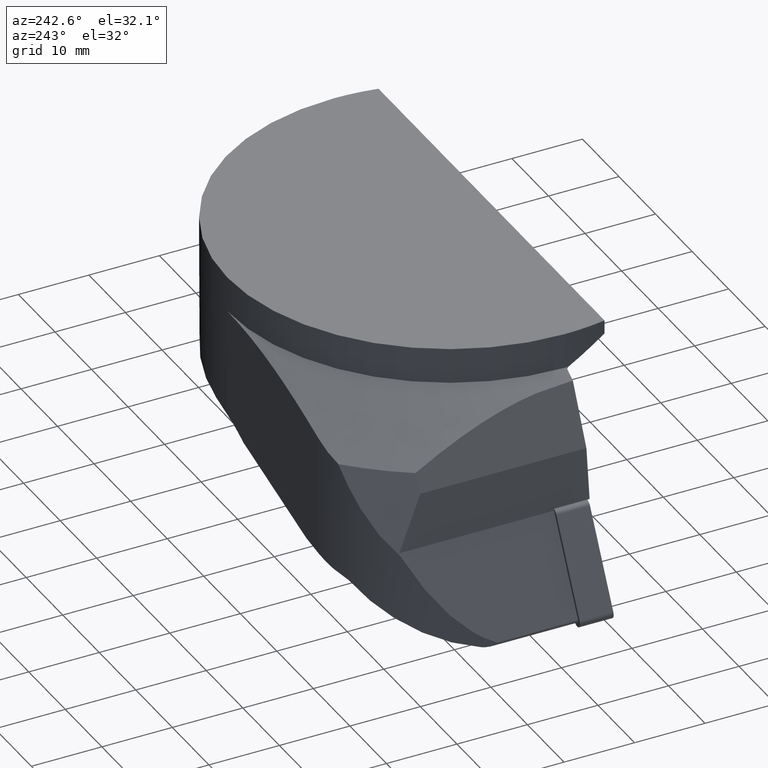
[diagram: clean part render]
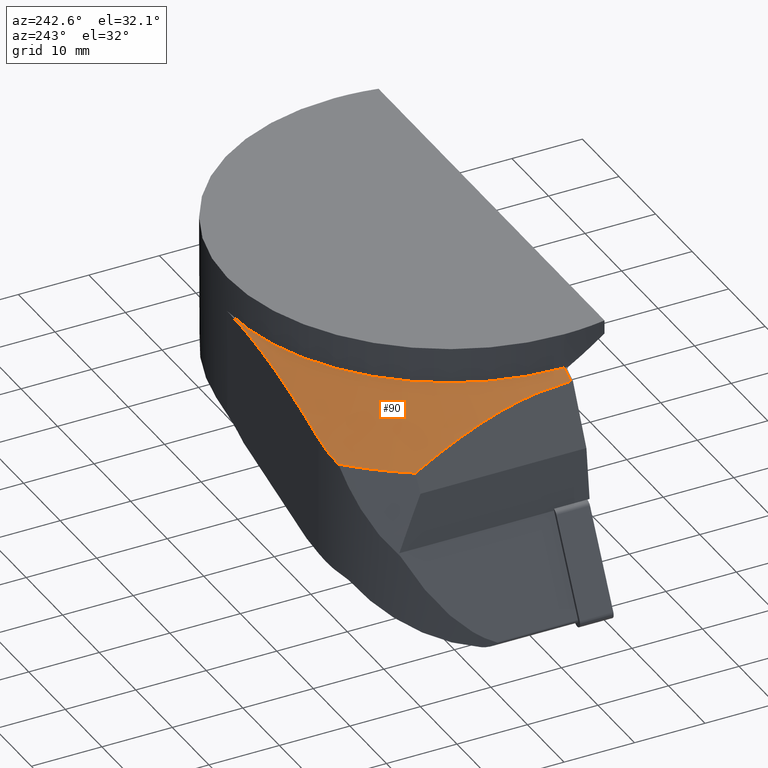
[diagram: same view with one face highlighted and labeled with its STEP entity id]
A machine part, auxiliary view. The second image highlights one B-rep face of the part: STEP entity #90.
In plain terms, the highlighted conical surface has half-angle 60 deg.
Its self-contained STEP definition (entity closure, byte-faithful):
#90=ADVANCED_FACE('',(#142),#143,.T.);
#142=FACE_OUTER_BOUND('',#286,.T.);
#143=CONICAL_SURFACE('',#287,33.095961123551,1.0471975488034);
#286=EDGE_LOOP('',(#443,#444,#445,#446,#447,#448));
#287=AXIS2_PLACEMENT_3D('',#449,#450,#451);
#443=ORIENTED_EDGE('',*,*,#672,.F.);
#444=ORIENTED_EDGE('',*,*,#673,.F.);
#445=ORIENTED_EDGE('',*,*,#674,.T.);
#446=ORIENTED_EDGE('',*,*,#675,.F.);
#447=ORIENTED_EDGE('',*,*,#676,.T.);
#448=ORIENTED_EDGE('',*,*,#677,.F.);
#449=CARTESIAN_POINT('',(5.77315972805081E-014,7.32747196252603E-014,-5.92142857142859));
#450=DIRECTION('',(0.0,-0.0,-1.0));
#451=DIRECTION('',(0.707106781186546,0.707106781186549,0.0));
#672=EDGE_CURVE('',#804,#805,#806,.T.);
#673=EDGE_CURVE('',#807,#804,#808,.T.);
#674=EDGE_CURVE('',#807,#809,#810,.T.);
#675=EDGE_CURVE('',#811,#809,#812,.T.);
#676=EDGE_CURVE('',#811,#813,#814,.T.);
#677=EDGE_CURVE('',#805,#813,#815,.T.);
#804=VERTEX_POINT('',#1022);
#805=VERTEX_POINT('',#1023);
#806=LINE('',#1024,#1025);
#807=VERTEX_POINT('',#1026);
#808=CIRCLE('',#1027,31.5);
#809=VERTEX_POINT('',#1028);
#810=(B_SPLINE_CURVE(2,(#1030,#1031,#1032),.UNSPECIFIED.,.F.,.F.)B_SPLINE_CURVE_WITH_KNOTS((3,3),(29.7690639770025,56.1841265537815),.UNSPECIFIED.)RATIONAL_B_SPLINE_CURVE((1.0,1.0760277212544,1.01713168299413))BOUNDED_CURVE()REPRESENTATION_ITEM('')GEOMETRIC_REPRESENTATION_ITEM()CURVE());
#811=VERTEX_POINT('',#1039);
#812=B_SPLINE_CURVE_WITH_KNOTS('',3,(#1040,#1041,#1042,#1043,#1044,#1045),.UNSPECIFIED.,.F.,.F.,(4,2,4),(3.85715846001028,5.74178911328001,8.4775333503241),.UNSPECIFIED.);
#813=VERTEX_POINT('',#1046);
#814=CIRCLE('',#1047,42.7583302491977);
#815=(B_SPLINE_CURVE(2,(#1049,#1050,#1051),.UNSPECIFIED.,.F.,.F.)B_SPLINE_CURVE_WITH_KNOTS((3,3),(24.1395381363305,48.2788501299277),.UNSPECIFIED.)RATIONAL_B_SPLINE_CURVE((1.18151488666258,1.18151488666248,1.00000340089985))BOUNDED_CURVE()REPRESENTATION_ITEM('')GEOMETRIC_REPRESENTATION_ITEM()CURVE());
#1022=CARTESIAN_POINT('',(-31.5,3.85751E-015,-5.0));
#1023=CARTESIAN_POINT('',(-33.2486014863881,2.849926E-015,-6.0095555388685));
#1024=CARTESIAN_POINT('',(-31.5,3.85751E-015,-5.0));
#1025=VECTOR('',#1248,2.01911107774157);
#1026=CARTESIAN_POINT('',(0.0,31.5,-5.0));
#1027=AXIS2_PLACEMENT_3D('',#1249,#1250,#1251);
#1028=CARTESIAN_POINT('',(-25.0,31.5,-10.0316346940355));
#1030=CARTESIAN_POINT('',(0.0,31.5,-5.0));
#1031=CARTESIAN_POINT('',(-10.9809591383467,31.5,-5.0));
#1032=CARTESIAN_POINT('',(-25.0,31.5,-10.0316346940355));
#1039=CARTESIAN_POINT('',(-29.4512462150672,30.9983693454825,-11.5));
#1040=CARTESIAN_POINT('',(-29.4512462150672,30.9983693454825,-11.5));
#1041=CARTESIAN_POINT('',(-28.8547898446183,31.1345332530571,-11.3198002116523));
#1042=CARTESIAN_POINT('',(-28.2523575804097,31.2432334774766,-11.1313465735817));
#1043=CARTESIAN_POINT('',(-26.7680451375148,31.441419094313,-10.6500527578228));
#1044=CARTESIAN_POINT('',(-25.8826901717809,31.5,-10.3484448479002));
#1045=CARTESIAN_POINT('',(-25.0,31.5,-10.0316346940355));
#1046=CARTESIAN_POINT('',(-35.8088377852884,23.3666844495824,-11.5));
#1047=AXIS2_PLACEMENT_3D('',#1252,#1253,#1254);
#1049=CARTESIAN_POINT('',(-33.2486014863881,2.849926E-015,-6.00955553886851));
#1050=CARTESIAN_POINT('',(-33.2486014863826,9.88847630328163,-6.00955553885679));
#1051=CARTESIAN_POINT('',(-35.8088377852884,23.3666844495824,-11.5));
#1248=DIRECTION('',(-0.866025403785092,-4.99023799999999E-016,-0.499999999998869));
#1249=CARTESIAN_POINT('',(0.0,1.608123E-015,-5.0));
#1250=DIRECTION('',(0.0,0.0,1.0));
#1251=DIRECTION('',(-1.0,0.0,0.0));
#1252=CARTESIAN_POINT('',(0.0,4.494702E-015,-11.5));
#1253=DIRECTION('',(0.0,0.0,1.0));
#1254=DIRECTION('',(-1.0,0.0,0.0));